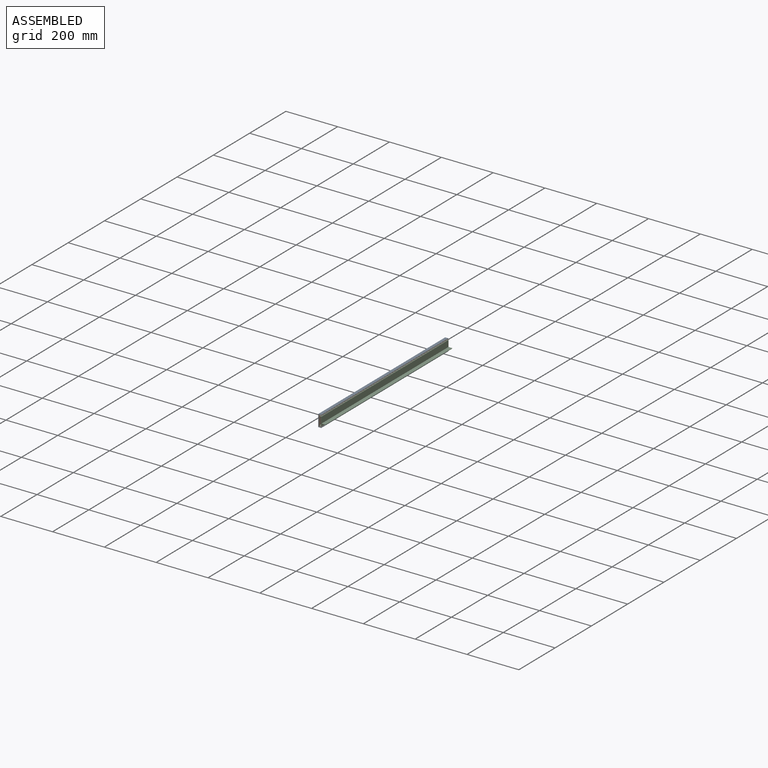
[diagram: assembled view]
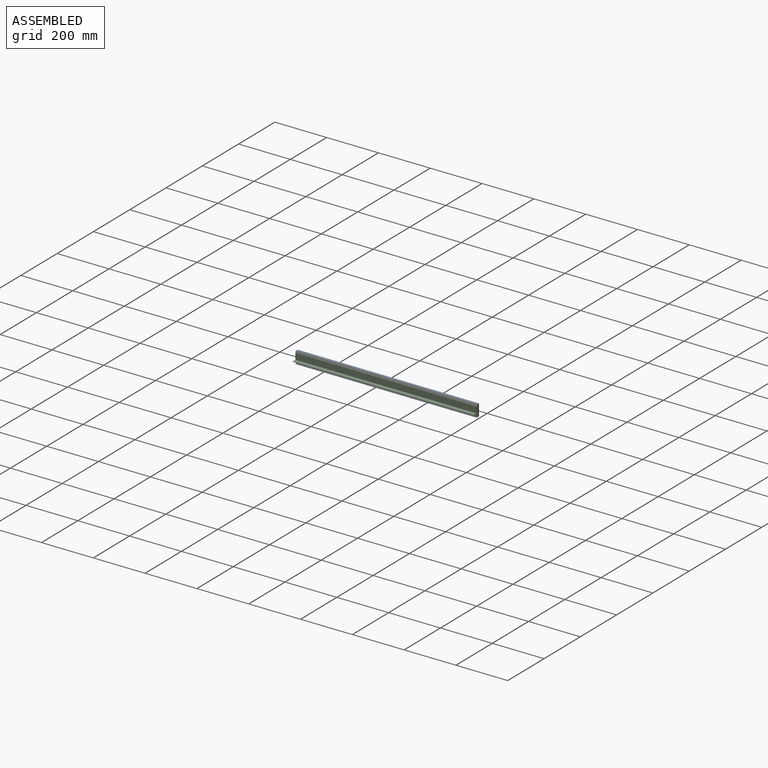
[diagram: assembled view, second angle]
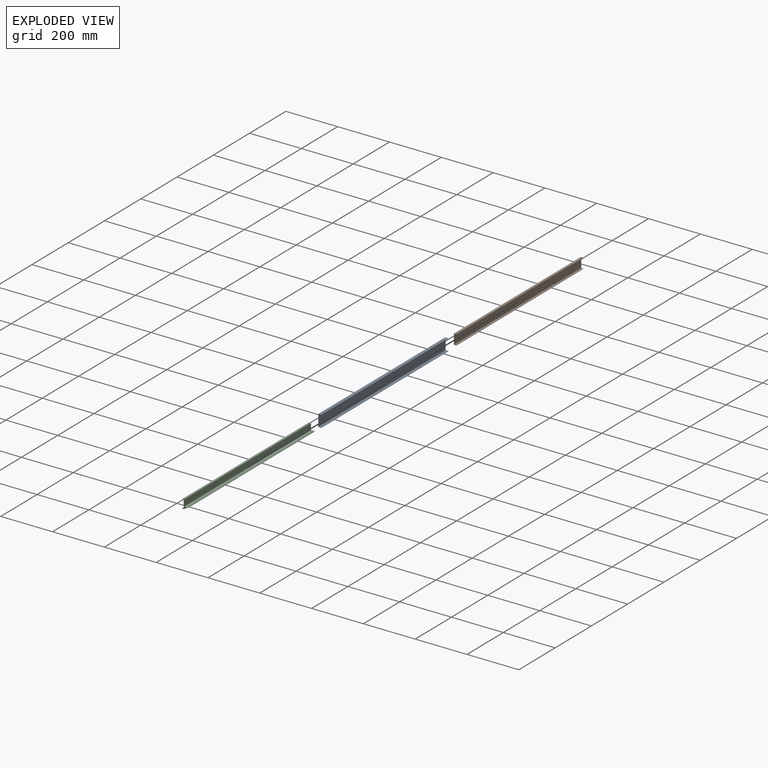
[diagram: exploded view]
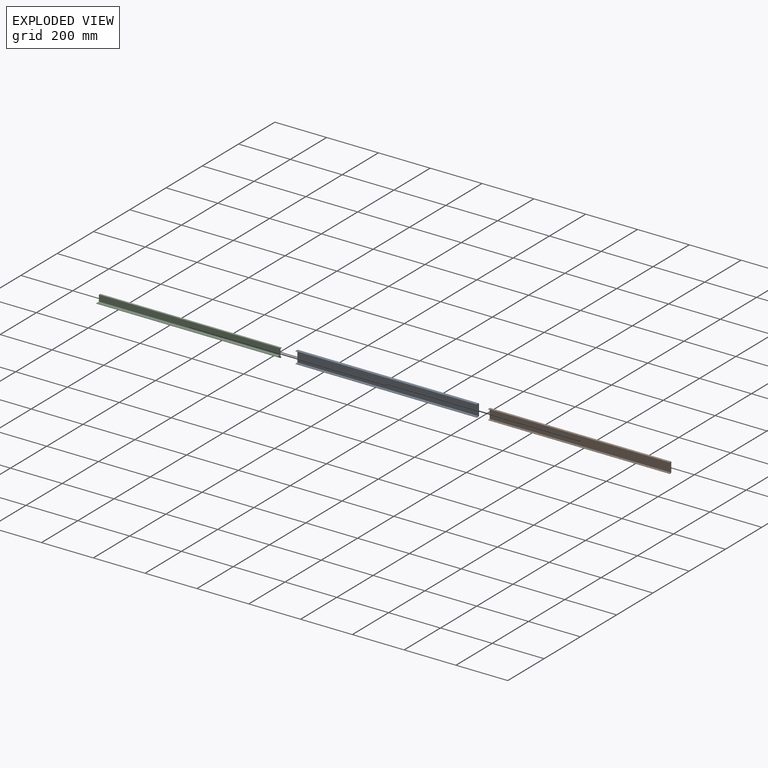
[diagram: exploded view, second angle]
ASSEMBLY  parts=3 mates=2
PART A: 10 faces, bbox 11.7x700x45.7 mm
  f0: plane 700x10.2mm, normal (0,0,-1), area 7140mm2, adj f1,f7,f8,f9
  f1: plane 700x1.5mm, normal (1,0,0), area 1050mm2, adj f0,f2,f8,f9
  f2: plane 700x11.7mm, normal (0,0,1), area 8190mm2, adj f1,f3,f8,f9
  f3: plane 700x45.7mm, normal (-1,0,0), area 31990mm2, adj f2,f4,f8,f9
  f4: plane 700x11.7mm, normal (0,0,-1), area 8190mm2, adj f3,f5,f8,f9
  f5: plane 700x1.5mm, normal (1,0,0), area 1050mm2, adj f4,f6,f8,f9
  f6: plane 700x10.2mm, normal (0,0,1), area 7140mm2, adj f5,f7,f8,f9
  f7: plane 700x42.7mm, normal (1,0,0), area 29890mm2, adj f0,f6,f8,f9
  f8: plane 45.7x11.7mm, normal (0,1,0), area 99.2mm2, adj f0,f1,f2,f3,f4,f5,f6,f7
  f9: plane 45.7x11.7mm, normal (0,-1,0), area 99.2mm2, adj f0,f1,f2,f3,f4,f5,f6,f7
PART B: 10 faces, bbox 9.2x700x39.7 mm
  f0: plane 700x7.7mm, normal (0,0,-1), area 5390mm2, adj f1,f7,f8,f9
  f1: plane 700x1.5mm, normal (1,0,0), area 1050mm2, adj f0,f2,f8,f9
  f2: plane 700x9.2mm, normal (0,0,1), area 6440mm2, adj f1,f3,f8,f9
  f3: plane 700x39.7mm, normal (-1,0,0), area 27790mm2, adj f2,f4,f8,f9
  f4: plane 700x9.2mm, normal (0,0,-1), area 6440mm2, adj f3,f5,f8,f9
  f5: plane 700x1.5mm, normal (1,0,0), area 1050mm2, adj f4,f6,f8,f9
  f6: plane 700x7.7mm, normal (0,0,1), area 5390mm2, adj f5,f7,f8,f9
  f7: plane 700x36.7mm, normal (1,0,0), area 25690mm2, adj f0,f6,f8,f9
  f8: plane 39.7x9.2mm, normal (0,1,0), area 82.6mm2, adj f0,f1,f2,f3,f4,f5,f6,f7
  f9: plane 39.7x9.2mm, normal (0,-1,0), area 82.6mm2, adj f0,f1,f2,f3,f4,f5,f6,f7
PART C: 14 faces, bbox 22.4x700x33.7 mm
  f0: plane 700x8mm, normal (1,0,0), area 5600mm2, adj f1,f11,f12,f13
  f1: plane 700x14.7mm, normal (0,0,-1), area 10290mm2, adj f0,f2,f12,f13
  f2: plane 700x1.5mm, normal (1,0,0), area 1050mm2, adj f1,f3,f12,f13
  f3: plane 700x14.7mm, normal (0,0,1), area 10290mm2, adj f2,f4,f12,f13
  f4: plane 700x24.2mm, normal (1,0,0), area 16940mm2, adj f3,f5,f12,f13
  f5: plane 700x7.7mm, normal (0,0,1), area 5390mm2, adj f4,f6,f12,f13
  f6: plane 700x1.5mm, normal (-1,0,0), area 1050mm2, adj f5,f7,f12,f13
  f7: plane 700x6.2mm, normal (0,0,-1), area 4340mm2, adj f6,f8,f12,f13
  f8: plane 700x30.7mm, normal (-1,0,0), area 21490mm2, adj f7,f9,f12,f13
  f9: plane 700x6.2mm, normal (0,0,1), area 4340mm2, adj f8,f10,f12,f13
  f10: plane 700x1.5mm, normal (-1,0,0), area 1050mm2, adj f9,f11,f12,f13
  f11: plane 700x7.7mm, normal (0,0,-1), area 5390mm2, adj f0,f10,f12,f13
  f12: plane 33.7x22.4mm, normal (0,1,0), area 91.2mm2, adj f0,f1,f2,f3,f4,f5,f6,f7
  f13: plane 33.7x22.4mm, normal (0,-1,0), area 91.2mm2, adj f0,f1,f2,f3,f4,f5,f6,f7
PLACE A at identity fixed
PLACE B at identity
PLACE C at identity
MATE slider B.f8 <-> A.f8  axis (0,1,0) through (-545.5,-1395,85.85)mm
MATE slider C.f12 <-> B.f8  axis (0,1,0) through (-536.8,-1395,85.85)mm
